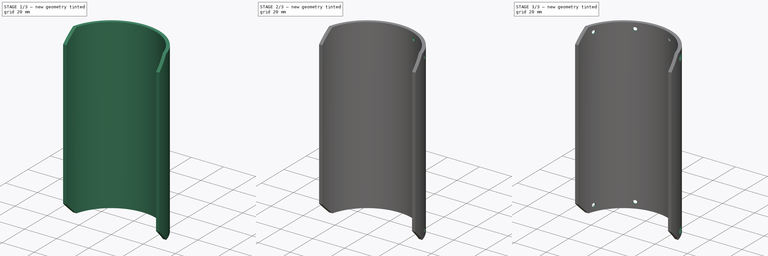
[diagram: build sequence overview — one tinted view per stage of 3, left to right]
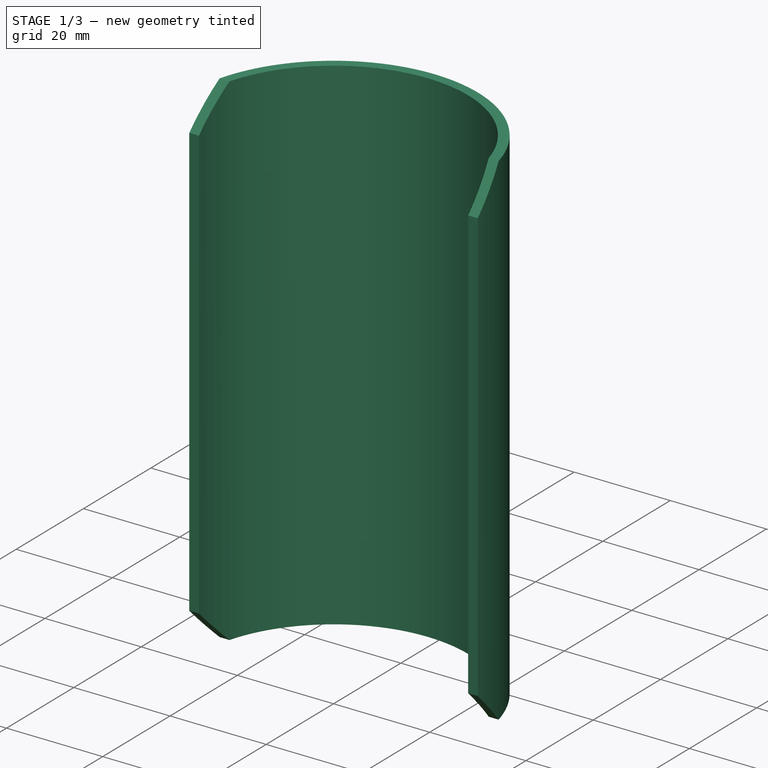
[diagram: stage 1 of 3 — iso view after this stage's code; geometry added in this stage tinted green]
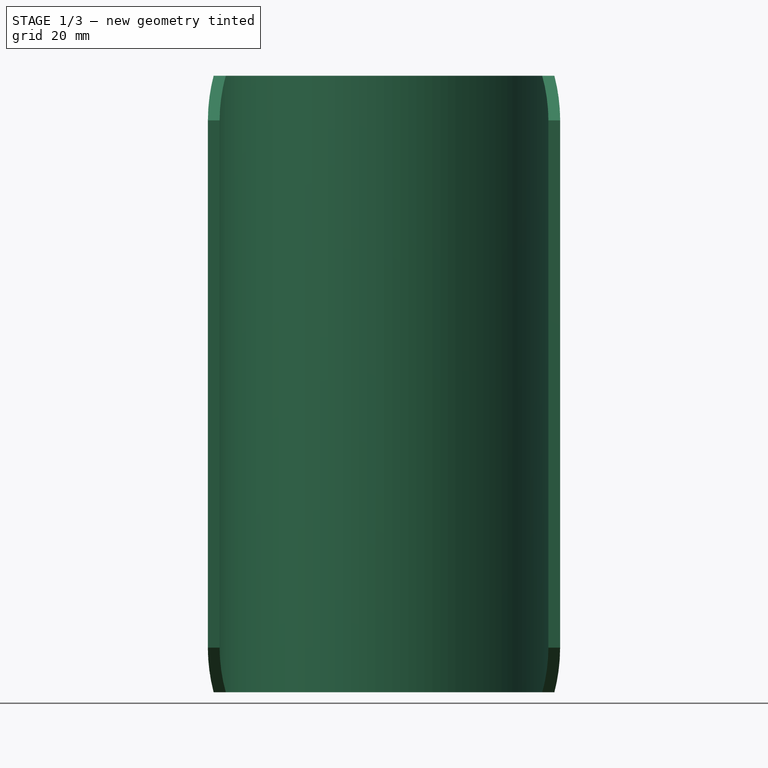
[diagram: stage 1 of 3 — front view after this stage's code; geometry added in this stage tinted green]
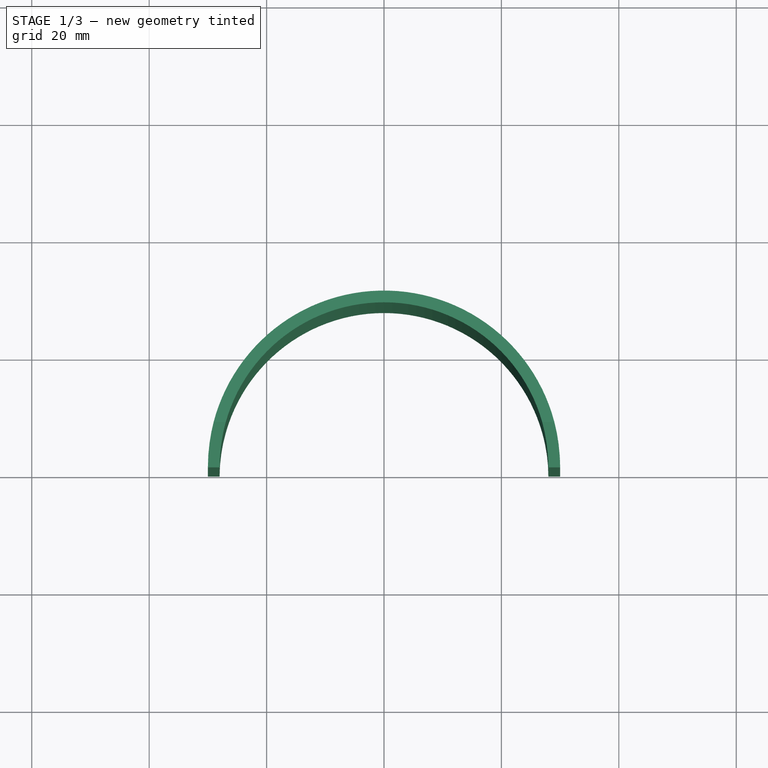
[diagram: stage 1 of 3 — top view after this stage's code; geometry added in this stage tinted green]
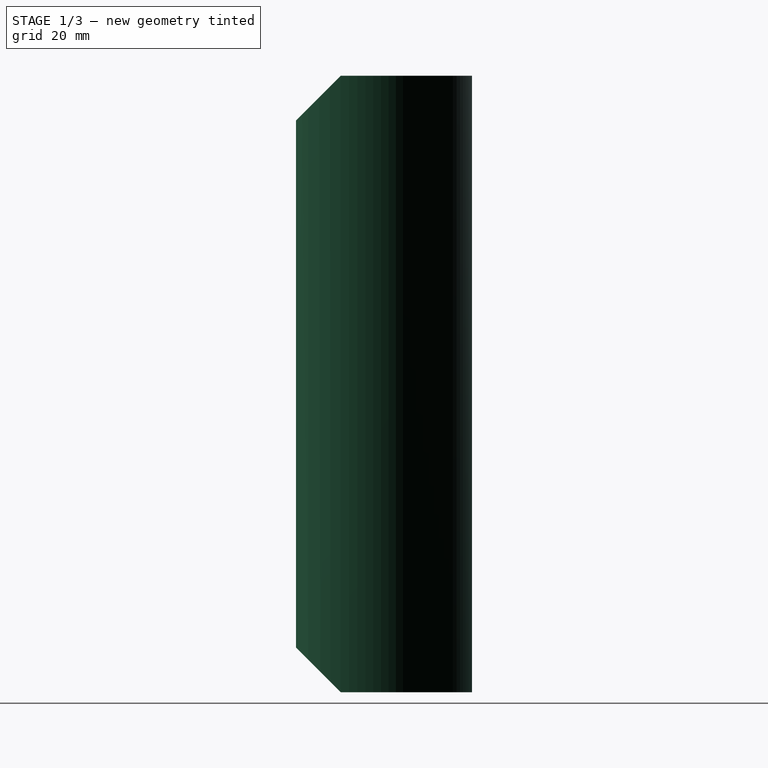
[diagram: stage 1 of 3 — right view after this stage's code; geometry added in this stage tinted green]
FCSTD DOCUMENT  (FreeCAD 1.0R39319 (Git))
Label: fuselage
License: All rights reserved
objects: Sketcher::SketchObject×5, PartDesign::Plane×3, PartDesign::Pocket×3, PartDesign::Pad×1, PartDesign::PolarPattern×1, PartDesign::Chamfer×1, PartDesign::Body×1
note: 31 computed .brp shape members not serialized (recipe doc carries the construction recipe); baked Part::Feature solids carry a one-line shape summary decoded from their .brp

FEATURE [Sketcher::SketchObject] Sketch
  ArcFitTolerance = 1e-06
  AttachmentSupport = -> [XY_Plane]
  FullyConstrained = false
  MakeInternals = false
  MapMode = 5
  sketch-geometry (4):
    g0: ArcOfCircle CenterX=0 CenterY=0 CenterZ=0 NormalX=0 NormalY=0 NormalZ=1 AngleXU=0 Radius=30 StartAngle=0 EndAngle=3.14159
    g1: ArcOfCircle CenterX=0 CenterY=0 CenterZ=0 NormalX=0 NormalY=0 NormalZ=1 AngleXU=0 Radius=28 StartAngle=0 EndAngle=3.14159
    g2: LineSegment StartX=-30 StartY=3.7e-15 StartZ=0 EndX=-28 EndY=3.4e-15 EndZ=0
    g3: LineSegment StartX=28 StartY=0 StartZ=0 EndX=30 EndY=0 EndZ=0
  constraints (8):
    c: Diameter(g0) = 60
    c: Coincident(g0,g-1)
    c: Diameter(g1) = 56
    c: Coincident(g1,g0)
    c: Coincident(g0,g2)
    c: Coincident(g0,g3)
    c: Coincident(g1,g2)
    c: Coincident(g1,g3)
FEATURE [PartDesign::Pad] Pad
  Direction = (0,0,1)
  Length = 105
  Length2 = 10
  Profile = -> Sketch
  ReferenceAxis = -> Sketch [N_Axis]
  Refine = true
  Suppressed = false
  Type = 0
FEATURE [PartDesign::Plane] DatumPlane
  AttachmentSupport = -> [Pad]
  Length = 71.7347
  MapMode = 7
  Placement = pos=(30,0,0) rot=(0.57735,-0.57735,-0.57735;2.0944rad)
  ResizeMode = 0
  Width = 146.888
FEATURE [Sketcher::SketchObject] Sketch001
  ArcFitTolerance = 1e-06
  AttachmentSupport = -> [DatumPlane]
  ExternalGeometry = -> [Pad]
  FullyConstrained = true
  MakeInternals = false
  MapMode = 5
  Placement = pos=(30,0,0) rot=(0.57735,-0.57735,-0.57735;2.0944rad)
  sketch-geometry (6):
    g0: LineSegment StartX=0 StartY=0 StartZ=0 EndX=-7.6 EndY=0 EndZ=0
    g1: LineSegment StartX=-7.6 StartY=0 StartZ=0 EndX=-4e-15 EndY=7.6 EndZ=0
    g2: LineSegment StartX=-4e-15 StartY=7.6 StartZ=0 EndX=0 EndY=0 EndZ=0
    g3: LineSegment StartX=-3.7e-15 StartY=97.4 StartZ=0 EndX=-7.6 EndY=105 EndZ=0
    g4: LineSegment StartX=-7.6 StartY=105 StartZ=0 EndX=0 EndY=105 EndZ=0
    g5: LineSegment StartX=0 StartY=105 StartZ=0 EndX=-3.7e-15 EndY=97.4 EndZ=0
  constraints (16):
    c: Coincident(g0,g-1)
    c: PointOnObject(g0,g-3)
    c: Coincident(g0,g1)
    c: PointOnObject(g1,g-4)
    c: Coincident(g1,g2)
    c: Coincident(g2,g0)
    c: DistanceX(g0,g-1) = 7.6
    c: DistanceY(g-1,g1) = 7.6
    c: PointOnObject(g3,g-4)
    c: PointOnObject(g3,g-5)
    c: Coincident(g3,g4)
    c: Coincident(g4,g5)
    c: Coincident(g5,g3)
    c: Coincident(g4,g-5)
    c: DistanceX(g3,g4) = 7.6
    c: DistanceY(g3,g4) = 7.6
FEATURE [PartDesign::Pocket] Pocket
  BaseFeature = -> Pad
  Direction = (1,0,0)
  Length = 5
  Length2 = 5
  Profile = -> Sketch001
  ReferenceAxis = -> Sketch001 [N_Axis]
  Refine = true
  Reversed = true
  Suppressed = false
  Type = 1
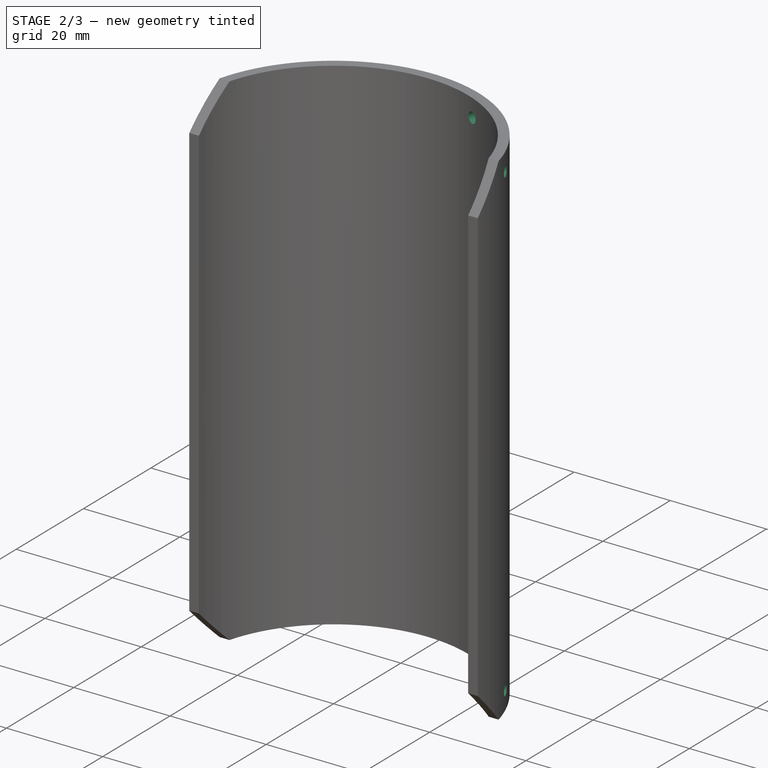
[diagram: stage 2 of 3 — iso view after this stage's code; geometry added in this stage tinted green]
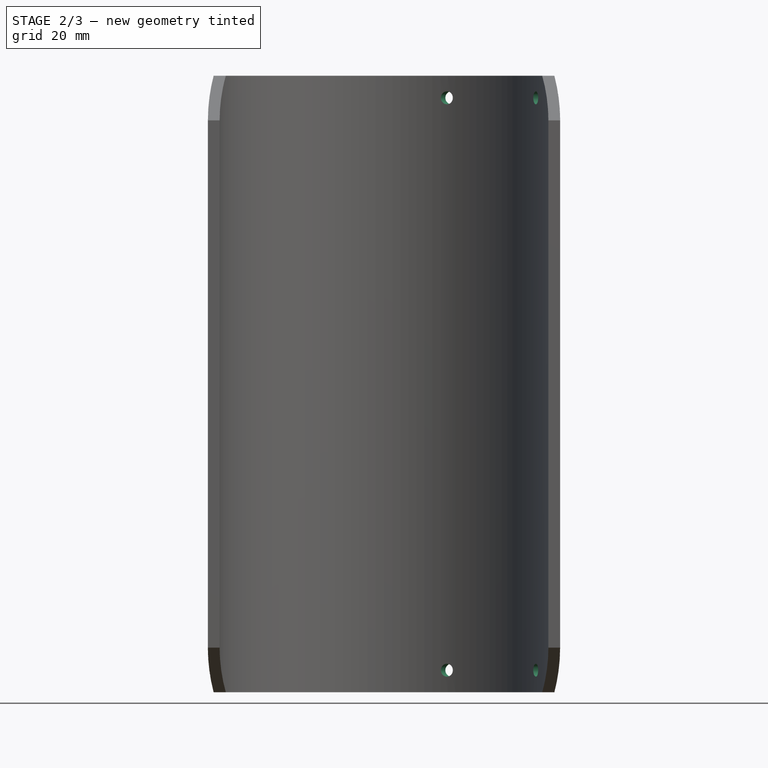
[diagram: stage 2 of 3 — front view after this stage's code; geometry added in this stage tinted green]
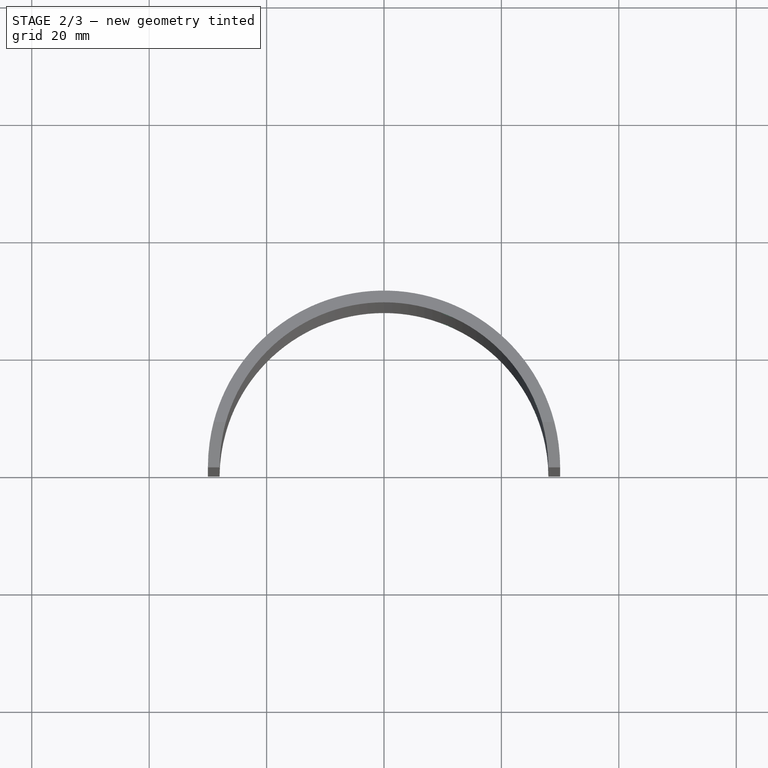
[diagram: stage 2 of 3 — top view after this stage's code; geometry added in this stage tinted green]
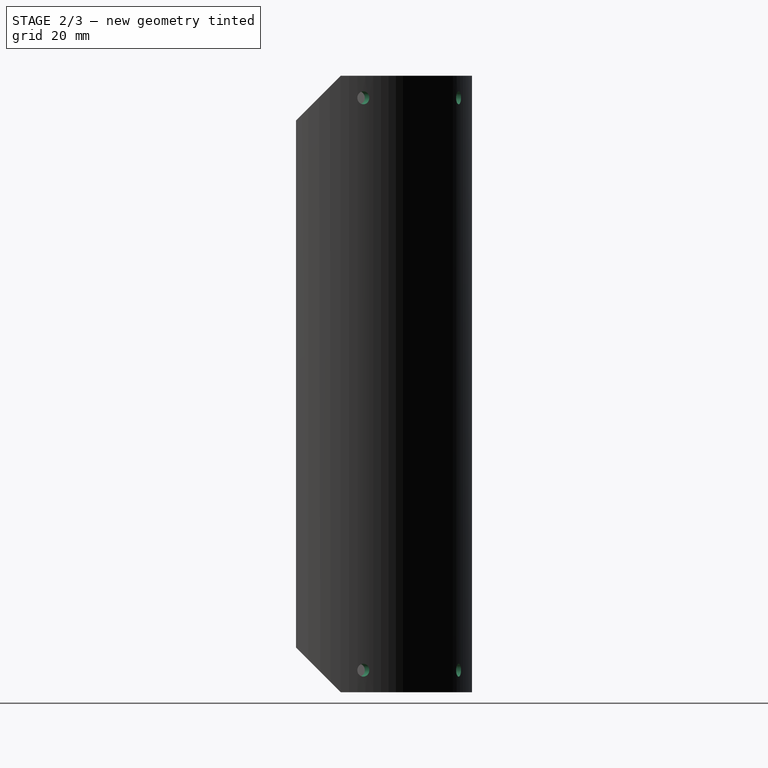
[diagram: stage 2 of 3 — right view after this stage's code; geometry added in this stage tinted green]
FEATURE [Sketcher::SketchObject] Sketch002
  ArcFitTolerance = 1e-06
  AttachmentSupport = -> [Pocket]
  ExternalGeometry = -> [Pocket]
  FullyConstrained = true
  MakeInternals = false
  MapMode = 5
  Placement = pos=(0,0,0) rot=(1,0,0;3.14159rad)
  sketch-geometry (3):
    g0: LineSegment [constr] StartX=0 StartY=0 StartZ=0 EndX=21.2132 EndY=-21.2132 EndZ=0
    g1: LineSegment StartX=0 StartY=0 StartZ=0 EndX=27.7164 EndY=-11.4805 EndZ=0
    g2: LineSegment StartX=0 StartY=0 StartZ=0 EndX=11.4805 EndY=-27.7164 EndZ=0
  constraints (9):
    c: Coincident(g0,g-1)
    c: PointOnObject(g0,g-3)
    c: Coincident(g1,g0)
    c: PointOnObject(g1,g-3)
    c: Coincident(g2,g0)
    c: PointOnObject(g2,g-3)
    c: Angle(g0,g-1) = 0.785398
    c: Angle(g2,g1) = 0.785398
    c: Angle(g2,g0) = 0.392699
FEATURE [PartDesign::Plane] DatumPlane001
  AttachmentSupport = -> [Sketch002]
  Length = 93.2004
  MapMode = 7
  Placement = pos=(27.7164,11.4805,0) rot=(0.726831,-0.485653,-0.485653;1.88458rad)
  ResizeMode = 0
  Width = 149.568
FEATURE [PartDesign::Plane] DatumPlane002
  AttachmentSupport = -> [Sketch002]
  Length = 96.3564
  MapMode = 7
  Placement = pos=(11.4805,27.7164,0) rot=(0.962637,-0.19148,-0.19148;1.60887rad)
  ResizeMode = 0
  Width = 149.935
FEATURE [Sketcher::SketchObject] Sketch003
  ArcFitTolerance = 1e-06
  AttachmentSupport = -> [DatumPlane001]
  ExternalGeometry = -> [Pocket,Sketch002]
  FullyConstrained = true
  MakeInternals = false
  MapMode = 5
  Placement = pos=(27.7164,11.4805,0) rot=(0.726831,-0.485653,-0.485653;1.88458rad)
  sketch-geometry (2):
    g0: Circle CenterX=0 CenterY=3.75 CenterZ=0 NormalX=0 NormalY=0 NormalZ=1 AngleXU=0 Radius=1.1
    g1: Circle CenterX=0 CenterY=101.25 CenterZ=0 NormalX=0 NormalY=0 NormalZ=1 AngleXU=0 Radius=1.1
  constraints (6):
    c: Diameter(g0) = 2.2
    c: PointOnObject(g0,g-2)
    c: Diameter(g1) = 2.2
    c: PointOnObject(g1,g-2)
    c: DistanceY(g1,g-3) = 3.75
    c: DistanceY(g-1,g0) = 3.75
FEATURE [Sketcher::SketchObject] Sketch004
  ArcFitTolerance = 1e-06
  AttachmentSupport = -> [DatumPlane002]
  ExternalGeometry = -> [Pocket]
  FullyConstrained = true
  MakeInternals = false
  MapMode = 5
  Placement = pos=(11.4805,27.7164,0) rot=(0.962637,-0.19148,-0.19148;1.60887rad)
  sketch-geometry (2):
    g0: Circle CenterX=0 CenterY=101.25 CenterZ=0 NormalX=0 NormalY=0 NormalZ=1 AngleXU=0 Radius=1.1
    g1: Circle CenterX=0 CenterY=3.75 CenterZ=0 NormalX=0 NormalY=0 NormalZ=1 AngleXU=0 Radius=1.1
  constraints (6):
    c: Diameter(g0) = 2.2
    c: PointOnObject(g0,g-2)
    c: Diameter(g1) = 2.2
    c: PointOnObject(g1,g-2)
    c: DistanceY(g0,g-3) = 3.75
    c: DistanceY(g-1,g1) = 3.75
FEATURE [PartDesign::Pocket] Pocket001  label="sede_viti_1"
  BaseFeature = -> Pocket
  Direction = (0.92388,0.382683,2e-16)
  Length = 3
  Length2 = 5
  Profile = -> Sketch003
  ReferenceAxis = -> Sketch003 [N_Axis]
  Refine = true
  Reversed = true
  Suppressed = false
  Type = 0
FEATURE [PartDesign::Pocket] Pocket002  label="sede_viti_2"
  BaseFeature = -> Pocket001
  Direction = (0.382683,0.92388,-2e-16)
  Length = 3
  Length2 = 5
  Profile = -> Sketch004
  ReferenceAxis = -> Sketch004 [N_Axis]
  Refine = true
  Reversed = true
  Suppressed = false
  Type = 0
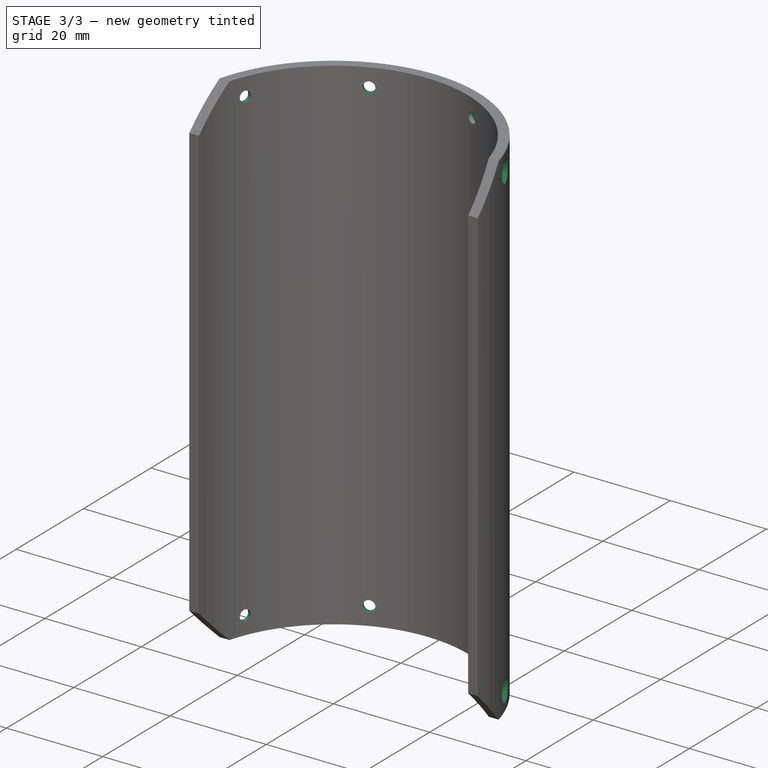
[diagram: stage 3 of 3 — iso view after this stage's code; geometry added in this stage tinted green]
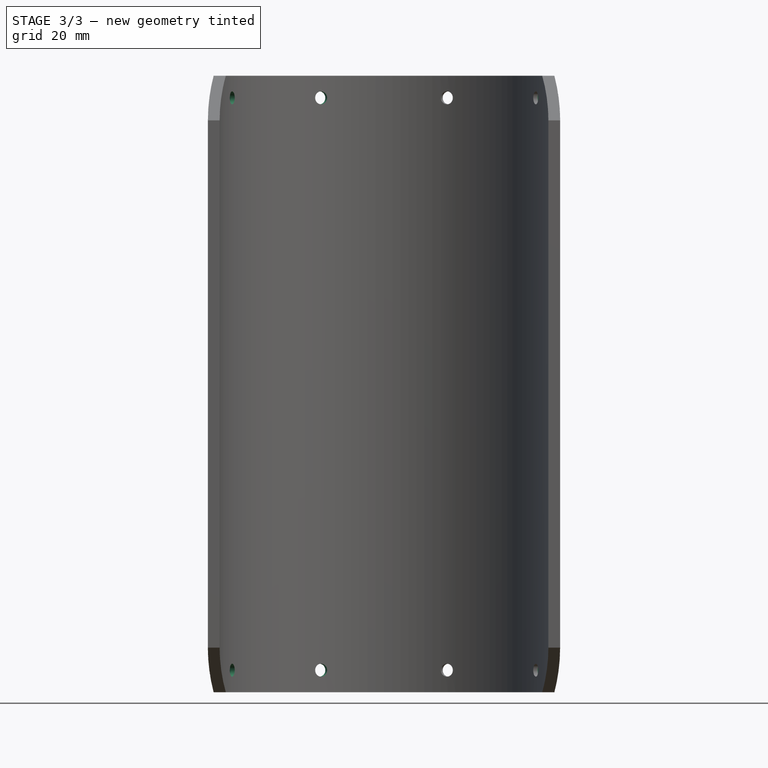
[diagram: stage 3 of 3 — front view after this stage's code; geometry added in this stage tinted green]
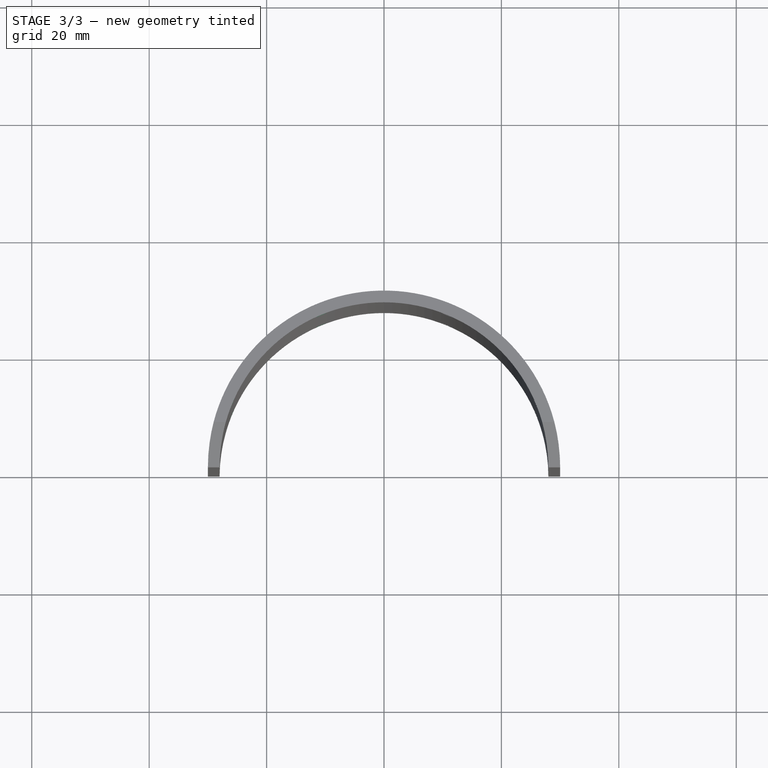
[diagram: stage 3 of 3 — top view after this stage's code; geometry added in this stage tinted green]
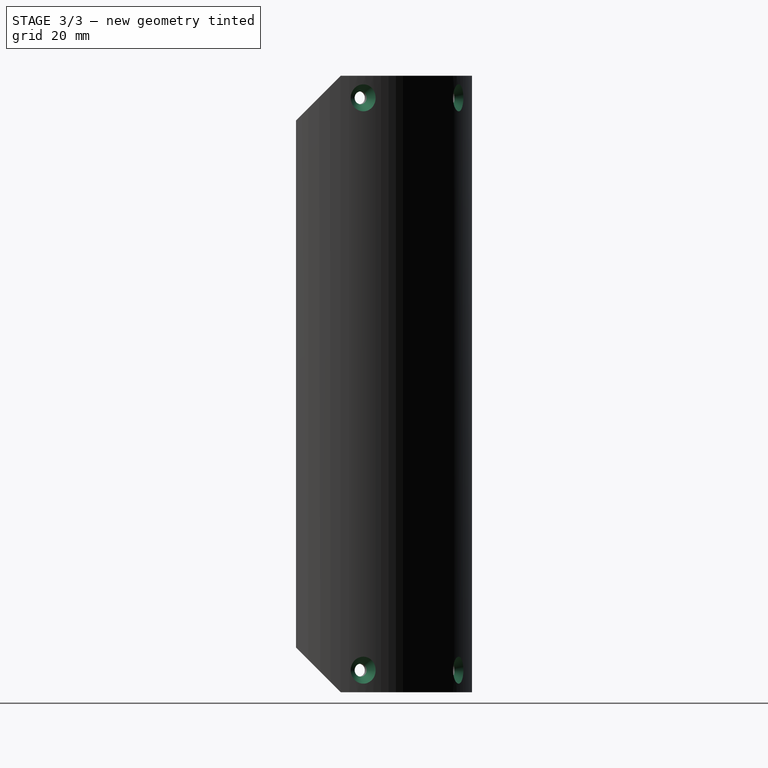
[diagram: stage 3 of 3 — right view after this stage's code; geometry added in this stage tinted green]
FEATURE [PartDesign::PolarPattern] PolarPattern
  Angle = 360
  Axis = -> Z_Axis
  BaseFeature = -> Pocket002
  Mode = 0
  Occurrences = 4
  Offset = 120
  Originals = -> [Pocket001,Pocket002]
  Refine = true
  Suppressed = false
  TransformMode = 0
FEATURE [PartDesign::Chamfer] Chamfer
  Angle = 45
  Base = -> PolarPattern [Edge36,Edge37,Edge35,Edge33,Edge34,Edge32,Edge30,Edge31,Edge29,Edge24,Edge25,Edge23,Edge22,Edge21,Edge20,Edge19,Edge18,Edge17,Edge15,Edge16,Edge14,Edge27,Edge26,Edge28]
  BaseFeature = -> PolarPattern
  ChamferType = 0
  FlipDirection = false
  Refine = true
  Size = 1.2
  Size2 = 1
  SupportTransform = false
  Suppressed = false
  UseAllEdges = false
FEATURE [PartDesign::Body] Body
  AllowCompound = false
  Group = -> [Sketch,Pad,DatumPlane,Sketch001,Pocket,Sketch002,DatumPlane001,DatumPlane002,Sketch003,Sketch004,Pocket001,Pocket002,PolarPattern,Chamfer]
  Origin = -> Origin
  Tip = -> Chamfer
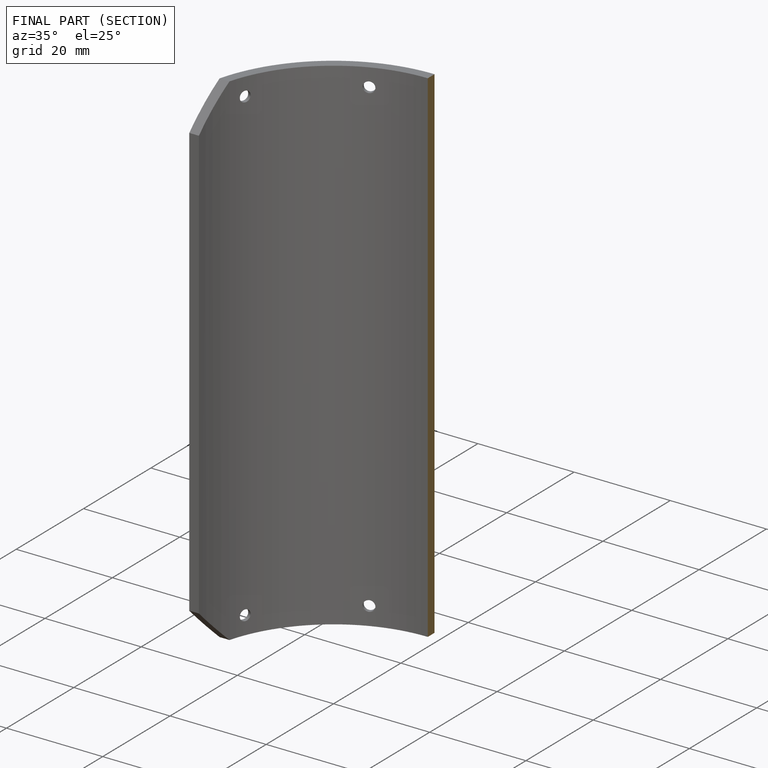
[diagram: finished part — half-section view (interior)]
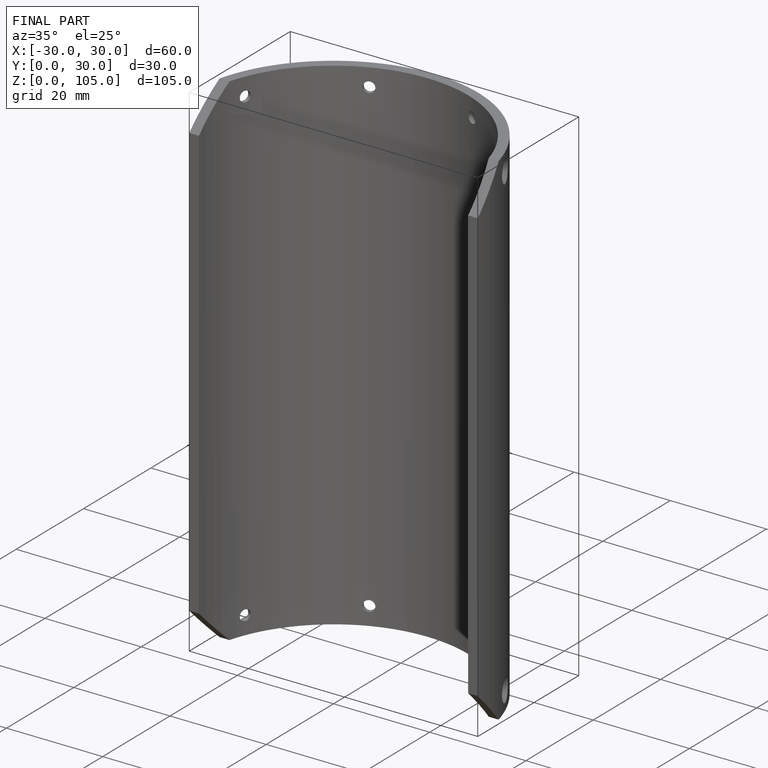
[diagram: finished part — iso view with bounding-box wireframe]
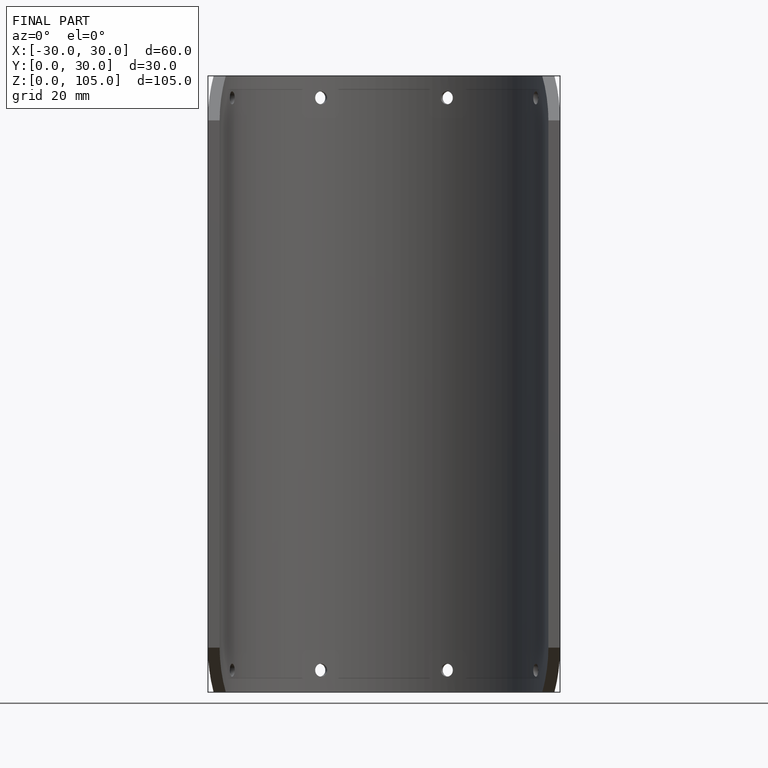
[diagram: finished part — front view with bounding-box wireframe]
